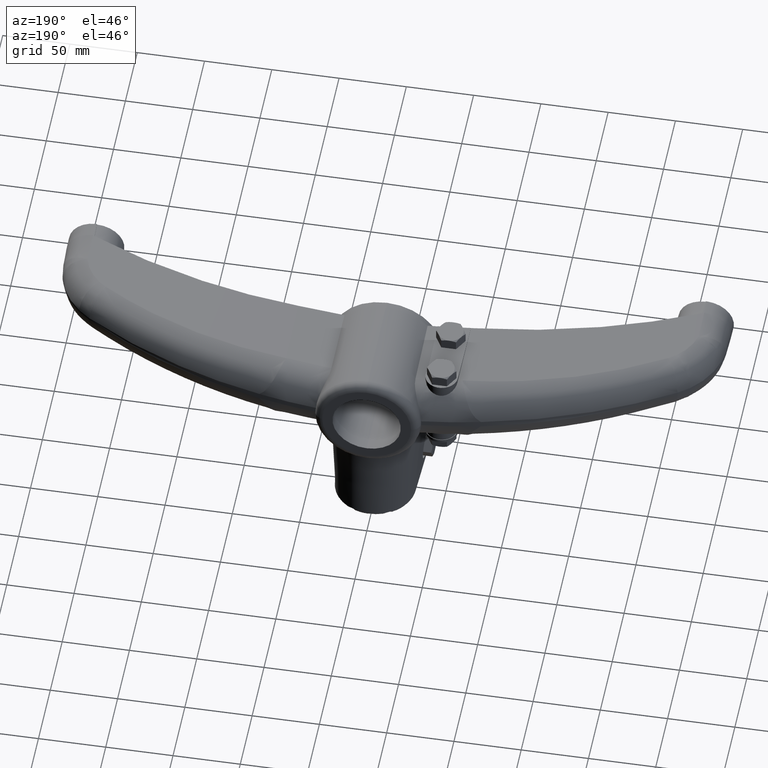
[diagram: clean part render]
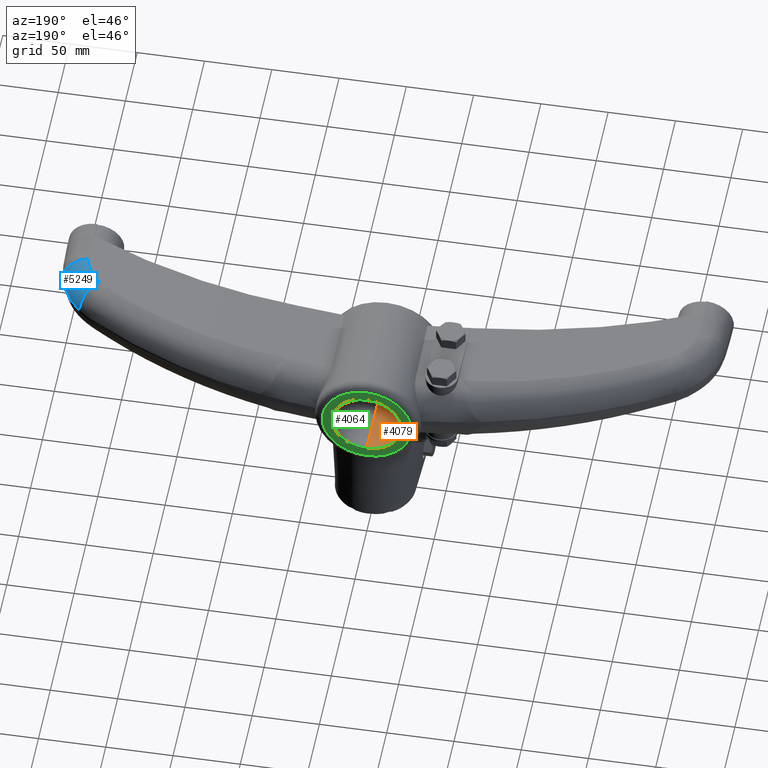
[diagram: same view with three faces highlighted in distinct colors, each labeled with its STEP entity id]
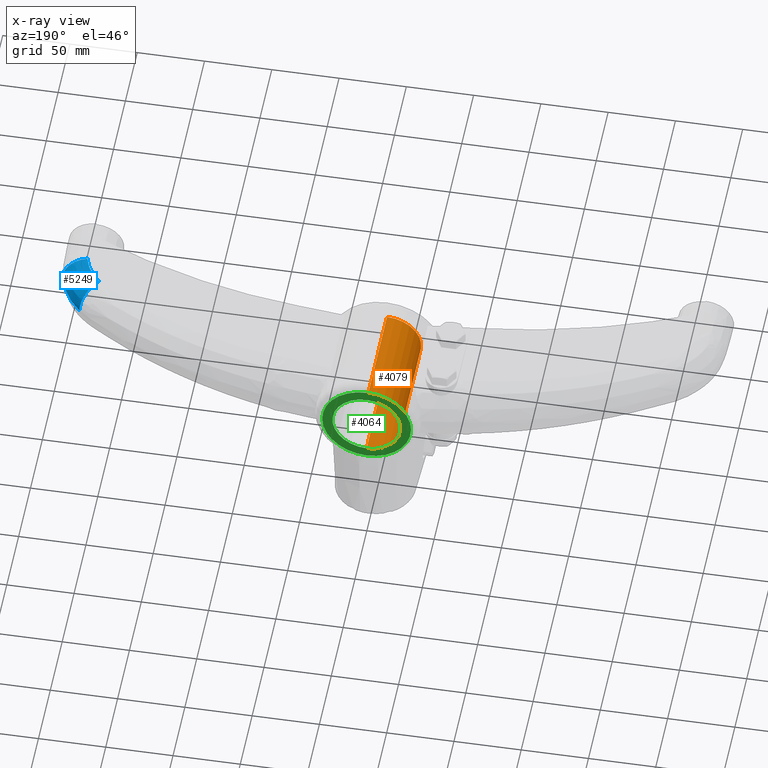
[diagram: x-ray of the same camera — body ghosted, the three highlighted faces saturated]
A machine part, auxiliary view with three faces highlighted in distinct colors.
The next image is the same camera in x-ray (body ghosted, the three faces saturated) — at least one of them is partly hidden behind the body in this view.
Their STEP definitions:

[orange] entity #4079 — the highlighted cylindrical surface (edge-blend (fillet) strip) has radius 25.4 mm, axis along (0, 1, 0).
#528=CARTESIAN_POINT('',(0.E0,2.008E2,0.E0));
#529=DIRECTION('',(0.E0,-1.E0,0.E0));
#530=DIRECTION('',(0.E0,0.E0,1.E0));
#531=AXIS2_PLACEMENT_3D('',#528,#529,#530);
#538=DIRECTION('',(0.E0,1.E0,0.E0));
#539=VECTOR('',#538,8.585E1);
#540=CARTESIAN_POINT('',(1.748526589449E-12,1.1495E2,2.54E1));
#541=LINE('',#540,#539);
#542=DIRECTION('',(0.E0,-1.E0,0.E0));
#543=VECTOR('',#542,8.585E1);
#544=CARTESIAN_POINT('',(-1.730970262687E-12,2.008E2,-2.54E1));
#545=LINE('',#544,#543);
#556=CARTESIAN_POINT('',(0.E0,1.1495E2,0.E0));
#557=DIRECTION('',(0.E0,-1.E0,0.E0));
#558=DIRECTION('',(0.E0,0.E0,1.E0));
#559=AXIS2_PLACEMENT_3D('',#556,#557,#558);
#2816=CARTESIAN_POINT('',(0.E0,2.008E2,2.54E1));
#2817=CARTESIAN_POINT('',(5.089064504793E-14,2.008E2,-2.54E1));
#2818=VERTEX_POINT('',#2816);
#2819=VERTEX_POINT('',#2817);
#2824=CARTESIAN_POINT('',(0.E0,1.1495E2,2.54E1));
#2825=CARTESIAN_POINT('',(6.101587903251E-14,1.1495E2,-2.54E1));
#2826=VERTEX_POINT('',#2824);
#2827=VERTEX_POINT('',#2825);
#4065=CARTESIAN_POINT('',(0.E0,1.13233E2,0.E0));
#4066=DIRECTION('',(0.E0,1.E0,0.E0));
#4067=DIRECTION('',(1.E0,0.E0,0.E0));
#4068=AXIS2_PLACEMENT_3D('',#4065,#4066,#4067);
#4069=CYLINDRICAL_SURFACE('',#4068,2.54E1);
#4071=ORIENTED_EDGE('',*,*,#4070,.T.);
#4072=ORIENTED_EDGE('',*,*,#4058,.T.);
#4074=ORIENTED_EDGE('',*,*,#4073,.T.);
#4076=ORIENTED_EDGE('',*,*,#4075,.F.);
#4077=EDGE_LOOP('',(#4071,#4072,#4074,#4076));
#4078=FACE_OUTER_BOUND('',#4077,.F.);
#532=CIRCLE('',#531,2.54E1);
#560=CIRCLE('',#559,2.54E1);
#4058=EDGE_CURVE('',#2818,#2819,#532,.T.);
#4070=EDGE_CURVE('',#2826,#2818,#541,.T.);
#4073=EDGE_CURVE('',#2819,#2827,#545,.T.);
#4075=EDGE_CURVE('',#2826,#2827,#560,.T.);
#4079=ADVANCED_FACE('',(#4078),#4069,.F.);

[blue] entity #5249 — the highlighted face is a freeform B-spline surface patch.
#871=CARTESIAN_POINT('',(2.147887990553E2,1.106143335990E2,1.976642468663E1));
#872=CARTESIAN_POINT('',(2.168444675634E2,1.087190028896E2,1.974243517692E1));
#873=CARTESIAN_POINT('',(2.204997489108E2,1.046238542276E2,1.972511924675E1));
#874=CARTESIAN_POINT('',(2.247145603816E2,9.739668299827E1,1.979271902081E1));
#875=CARTESIAN_POINT('',(2.264789147487E2,9.219757636884E1,1.989699918010E1));
#876=CARTESIAN_POINT('',(2.271163880004E2,8.947427717805E1,1.996420669294E1));
#906=CARTESIAN_POINT('',(2.147887990553E2,1.106143335990E2,1.976642468663E1));
#907=CARTESIAN_POINT('',(2.162732689892E2,1.122322042977E2,1.964470778454E1));
#908=CARTESIAN_POINT('',(2.194289586342E2,1.156814367755E2,1.860983506199E1));
#909=CARTESIAN_POINT('',(2.237248985495E2,1.204161251185E2,1.415435554932E1));
#910=CARTESIAN_POINT('',(2.264497888097E2,1.234681571072E2,7.524948947217E0));
#911=CARTESIAN_POINT('',(2.269424967055E2,1.240652443800E2,2.803564686934E0));
#912=CARTESIAN_POINT('',(2.269284403746E2,1.240781541844E2,6.065666516482E-1));
#932=CARTESIAN_POINT('',(2.449688144053E2,9.314148624189E1,8.043486134355E-1));
#934=CARTESIAN_POINT('',(2.449688144053E2,9.314148624189E1,8.043486134355E-1));
#935=CARTESIAN_POINT('',(2.422305893967E2,1.049440503547E2,6.045767622769E-1));
#936=CARTESIAN_POINT('',(2.358534615794E2,1.158811137690E2,5.346337850391E-1));
#937=CARTESIAN_POINT('',(2.269284403746E2,1.240781541844E2,6.065666516482E-1));
#1069=CARTESIAN_POINT('',(2.271163880004E2,8.947427717805E1,1.996420669294E1));
#1070=CARTESIAN_POINT('',(2.292608576266E2,8.996903898491E1,1.985277474181E1));
#1071=CARTESIAN_POINT('',(2.338369805331E2,9.100553774989E1,1.883668354293E1));
#1072=CARTESIAN_POINT('',(2.401249935759E2,9.235418767987E1,1.438835911357E1));
#1073=CARTESIAN_POINT('',(2.441733413905E2,9.312881874024E1,7.743332262751E0));
#1074=CARTESIAN_POINT('',(2.449568011814E2,9.319326691975E1,3.007330858494E0));
#1075=CARTESIAN_POINT('',(2.449688144053E2,9.314148624189E1,8.043486134355E-1));
#2974=CARTESIAN_POINT('',(2.271163880004E2,8.947427717805E1,1.996420669294E1));
#2975=VERTEX_POINT('',#2974);
#2976=VERTEX_POINT('',#871);
#3001=VERTEX_POINT('',#932);
#3002=VERTEX_POINT('',#937);
#5154=CARTESIAN_POINT('',(2.266222763367E2,8.903470877112E1,1.999248899543E1));
#5155=CARTESIAN_POINT('',(2.265980074450E2,8.913756081586E1,1.998992238087E1));
#5156=CARTESIAN_POINT('',(2.264350157676E2,8.981678513703E1,1.997309372719E1));
#5157=CARTESIAN_POINT('',(2.261022126779E2,9.106494349618E1,1.994364068039E1));
#5158=CARTESIAN_POINT('',(2.255714338906E2,9.276217601507E1,1.990706028718E1));
#5159=CARTESIAN_POINT('',(2.249692490505E2,9.443465897387E1,1.987452727109E1));
#5160=CARTESIAN_POINT('',(2.242966708408E2,9.607982396435E1,1.984609281001E1));
#5161=CARTESIAN_POINT('',(2.235544274469E2,9.769583563740E1,1.982179380253E1));
#5162=CARTESIAN_POINT('',(2.227468791795E2,9.927347282239E1,1.980176705556E1));
#5163=CARTESIAN_POINT('',(2.218896934740E2,1.007866841939E2,1.978624235691E1));
#5164=CARTESIAN_POINT('',(2.210099007057E2,1.022010438352E2,1.977523934700E1));
#5165=CARTESIAN_POINT('',(2.201347819131E2,1.034935244683E2,1.976836036911E1));
#5166=CARTESIAN_POINT('',(2.192829424781E2,1.046591755180E2,1.976495155982E1));
#5167=CARTESIAN_POINT('',(2.184618866753E2,1.057079588205E2,1.976432391738E1));
#5168=CARTESIAN_POINT('',(2.176753906576E2,1.066518110191E2,1.976588436245E1));
#5169=CARTESIAN_POINT('',(2.169273584787E2,1.074997083070E2,1.976913921858E1));
#5170=CARTESIAN_POINT('',(2.162237152053E2,1.082568281210E2,1.977363958620E1));
#5171=CARTESIAN_POINT('',(2.155650504480E2,1.089329515502E2,1.977901116168E1));
#5172=CARTESIAN_POINT('',(2.149422850692E2,1.095453165180E2,1.978504628256E1));
#5173=CARTESIAN_POINT('',(2.144567830897E2,1.100038328745E2,1.979042200250E1));
#5174=CARTESIAN_POINT('',(2.141773335658E2,1.102606443201E2,1.979376855949E1));
#5175=CARTESIAN_POINT('',(2.140992652534E2,1.103318444349E2,1.979472280320E1));
#5176=CARTESIAN_POINT('',(2.376800043010E2,9.150404253800E1,1.976365836721E1));
#5177=CARTESIAN_POINT('',(2.376493366178E2,9.163554849344E1,1.976109090456E1));
#5178=CARTESIAN_POINT('',(2.374433145981E2,9.250400225012E1,1.974425686646E1));
#5179=CARTESIAN_POINT('',(2.370219732768E2,9.409994143818E1,1.971479619184E1));
#5180=CARTESIAN_POINT('',(2.363484460728E2,9.627051481869E1,1.967820439787E1));
#5181=CARTESIAN_POINT('',(2.355830158457E2,9.840962308989E1,1.964566187829E1));
#5182=CARTESIAN_POINT('',(2.347269455264E2,1.005139872665E2,1.961721864571E1));
#5183=CARTESIAN_POINT('',(2.337811791405E2,1.025811447296E2,1.959291217803E1));
#5184=CARTESIAN_POINT('',(2.327512811295E2,1.045992382101E2,1.957287917394E1));
#5185=CARTESIAN_POINT('',(2.316572773846E2,1.065348626154E2,1.955734960196E1));
#5186=CARTESIAN_POINT('',(2.305337541850E2,1.083439239601E2,1.954634310993E1));
#5187=CARTESIAN_POINT('',(2.294156747861E2,1.099969341027E2,1.953946194533E1));
#5188=CARTESIAN_POINT('',(2.283269371806E2,1.114875536149E2,1.953605205094E1));
#5189=CARTESIAN_POINT('',(2.272772401421E2,1.128285347145E2,1.953542420767E1));
#5190=CARTESIAN_POINT('',(2.262714974636E2,1.140351618337E2,1.953698515018E1));
#5191=CARTESIAN_POINT('',(2.253147685818E2,1.151189376638E2,1.954024103991E1));
#5192=CARTESIAN_POINT('',(2.244146838219E2,1.160865148374E2,1.954474284025E1));
#5193=CARTESIAN_POINT('',(2.235720433431E2,1.169504269658E2,1.955011610844E1));
#5194=CARTESIAN_POINT('',(2.227752563205E2,1.177327380135E2,1.955615315646E1));
#5195=CARTESIAN_POINT('',(2.221540522032E2,1.183183926068E2,1.956153053728E1));
#5196=CARTESIAN_POINT('',(2.217964737909E2,1.186463761373E2,1.956487817499E1));
#5197=CARTESIAN_POINT('',(2.216965772867E2,1.187373057566E2,1.956583273185E1));
#5198=CARTESIAN_POINT('',(2.453433711876E2,9.301302766925E1,1.155274541689E1));
#5199=CARTESIAN_POINT('',(2.453085629452E2,9.316541794621E1,1.155015157717E1));
#5200=CARTESIAN_POINT('',(2.450746074801E2,9.417181118935E1,1.153314416578E1));
#5201=CARTESIAN_POINT('',(2.445947170164E2,9.602150548424E1,1.150337825669E1));
#5202=CARTESIAN_POINT('',(2.438245086944E2,9.853790792664E1,1.146639828929E1));
#5203=CARTESIAN_POINT('',(2.429465565994E2,1.010182891484E2,1.143350542931E1));
#5204=CARTESIAN_POINT('',(2.419622948376E2,1.034587398538E2,1.140475118486E1));
#5205=CARTESIAN_POINT('',(2.408728264E2,1.058562258500E2,1.138017570594E1));
#5206=CARTESIAN_POINT('',(2.396845860726E2,1.081968492020E2,1.135991862867E1));
#5207=CARTESIAN_POINT('',(2.384207650691E2,1.104417127357E2,1.134421392113E1));
#5208=CARTESIAN_POINT('',(2.371214979944E2,1.125395568533E2,1.133308253772E1));
#5209=CARTESIAN_POINT('',(2.358274681889E2,1.144561168514E2,1.132612297756E1));
#5210=CARTESIAN_POINT('',(2.345665895729E2,1.161840282256E2,1.132267414834E1));
#5211=CARTESIAN_POINT('',(2.333503121264E2,1.177380981937E2,1.132203912982E1));
#5212=CARTESIAN_POINT('',(2.321845023933E2,1.191360852655E2,1.132361790553E1));
#5213=CARTESIAN_POINT('',(2.310751593740E2,1.203913723599E2,1.132691094656E1));
#5214=CARTESIAN_POINT('',(2.300312378135E2,1.215117329129E2,1.133146402514E1));
#5215=CARTESIAN_POINT('',(2.290537538513E2,1.225117518401E2,1.133689834435E1));
#5216=CARTESIAN_POINT('',(2.281293195817E2,1.234170378176E2,1.134300383365E1));
#5217=CARTESIAN_POINT('',(2.274085143372E2,1.240945385356E2,1.134844194412E1));
#5218=CARTESIAN_POINT('',(2.269935712706E2,1.244738759782E2,1.135182736028E1));
#5219=CARTESIAN_POINT('',(2.268776463465E2,1.245790364365E2,1.135279267965E1));
#5220=CARTESIAN_POINT('',(2.450678472785E2,9.266680582470E1,2.289856206769E-1));
#5221=CARTESIAN_POINT('',(2.450336121440E2,9.281992601393E1,2.263555171063E-1));
#5222=CARTESIAN_POINT('',(2.448033852216E2,9.383116792227E1,2.091095573666E-1));
#5223=CARTESIAN_POINT('',(2.443296555164E2,9.569010975222E1,1.789218172888E-1));
#5224=CARTESIAN_POINT('',(2.435661672101E2,9.821974591161E1,1.414070984106E-1));
#5225=CARTESIAN_POINT('',(2.426931444829E2,1.007136660419E2,1.080308199455E-1));
#5226=CARTESIAN_POINT('',(2.417120120330E2,1.031677845906E2,7.884775953010E-2));
#5227=CARTESIAN_POINT('',(2.406238806726E2,1.055788904410E2,5.390124738404E-2));
#5228=CARTESIAN_POINT('',(2.394352056142E2,1.079328505809E2,3.333516075283E-2));
#5229=CARTESIAN_POINT('',(2.381692731610E2,1.101903943544E2,1.738891428888E-2));
#5230=CARTESIAN_POINT('',(2.368664683974E2,1.122998483585E2,6.085293311914E-3));
#5231=CARTESIAN_POINT('',(2.355678404928E2,1.142266882269E2,
-9.823811150214E-4));
#5232=CARTESIAN_POINT('',(2.343016610856E2,1.159634960460E2,
-4.484905732243E-3));
#5233=CARTESIAN_POINT('',(2.330796495700E2,1.175251799964E2,
-5.129818879739E-3));
#5234=CARTESIAN_POINT('',(2.319078753508E2,1.189296317764E2,
-3.526449640255E-3));
#5235=CARTESIAN_POINT('',(2.307925039929E2,1.201903532500E2,
-1.821710723132E-4));
#5236=CARTESIAN_POINT('',(2.297426484152E2,1.213152196046E2,4.441622232630E-3));
#5237=CARTESIAN_POINT('',(2.287594180882E2,1.223189493786E2,9.960146309393E-3));
#5238=CARTESIAN_POINT('',(2.278294083367E2,1.232273125446E2,1.616000396613E-2));
#5239=CARTESIAN_POINT('',(2.271041684349E2,1.239069006876E2,2.168189895166E-2));
#5240=CARTESIAN_POINT('',(2.266866433346E2,1.242873199734E2,2.511938794030E-2));
#5241=CARTESIAN_POINT('',(2.265699949358E2,1.243927734334E2,2.609953678393E-2));
#5242=(BOUNDED_SURFACE()B_SPLINE_SURFACE(3,3,((#5154,#5155,#5156,#5157,#5158,
#5159,#5160,#5161,#5162,#5163,#5164,#5165,#5166,#5167,#5168,#5169,#5170,#5171,
#5172,#5173,#5174,#5175),(#5176,#5177,#5178,#5179,#5180,#5181,#5182,#5183,#5184,
#5185,#5186,#5187,#5188,#5189,#5190,#5191,#5192,#5193,#5194,#5195,#5196,#5197),(
#5198,#5199,#5200,#5201,#5202,#5203,#5204,#5205,#5206,#5207,#5208,#5209,#5210,
#5211,#5212,#5213,#5214,#5215,#5216,#5217,#5218,#5219),(#5220,#5221,#5222,#5223,
#5224,#5225,#5226,#5227,#5228,#5229,#5230,#5231,#5232,#5233,#5234,#5235,#5236,
#5237,#5238,#5239,#5240,#5241)),.UNSPECIFIED.,.F.,.F.,.F.)B_SPLINE_SURFACE_WITH_KNOTS((4,4),(4,1,1,1,1,1,1,1,1,1,1,1,1,1,1,1,1,1,1,4),(0.E0,1.E0),(
-1.294605008780E-2,0.E0,7.262482864328E-2,1.452745169375E-1,2.179348894728E-1,
2.905450465853E-1,3.632425270235E-1,4.360849179349E-1,5.080115287399E-1,
5.766816456358E-1,6.405438756696E-1,6.996337451724E-1,7.539385672368E-1,
8.040843023372E-1,8.504866677245E-1,8.927709300473E-1,9.309925971963E-1,
9.663781087823E-1,1.E0,1.012971693591E0),.UNSPECIFIED.)GEOMETRIC_REPRESENTATION_ITEM()RATIONAL_B_SPLINE_SURFACE(((1.174060306377E0,1.174060306377E0,
1.174060306377E0,1.174060306377E0,1.174060306377E0,1.174060306377E0,
1.174060306377E0,1.174060306377E0,1.174060306377E0,1.174060306377E0,
1.174060306377E0,1.174060306377E0,1.174060306377E0,1.174060306377E0,
1.174060306377E0,1.174060306377E0,1.174060306377E0,1.174060306377E0,
1.174060306377E0,1.174060306377E0,1.174060306377E0,1.174060306377E0),(
9.419798978742E-1,9.419798978742E-1,9.419798978742E-1,9.419798978742E-1,
9.419798978742E-1,9.419798978742E-1,9.419798978742E-1,9.419798978742E-1,
9.419798978742E-1,9.419798978742E-1,9.419798978742E-1,9.419798978742E-1,
9.419798978742E-1,9.419798978742E-1,9.419798978742E-1,9.419798978742E-1,
9.419798978742E-1,9.419798978742E-1,9.419798978742E-1,9.419798978742E-1,
9.419798978742E-1,9.419798978742E-1),(9.419798978742E-1,9.419798978742E-1,
9.419798978742E-1,9.419798978742E-1,9.419798978742E-1,9.419798978742E-1,
9.419798978742E-1,9.419798978742E-1,9.419798978742E-1,9.419798978742E-1,
9.419798978742E-1,9.419798978742E-1,9.419798978742E-1,9.419798978742E-1,
9.419798978742E-1,9.419798978742E-1,9.419798978742E-1,9.419798978742E-1,
9.419798978742E-1,9.419798978742E-1,9.419798978742E-1,9.419798978742E-1),(
1.174060306377E0,1.174060306377E0,1.174060306377E0,1.174060306377E0,
1.174060306377E0,1.174060306377E0,1.174060306377E0,1.174060306377E0,
1.174060306377E0,1.174060306377E0,1.174060306377E0,1.174060306377E0,
1.174060306377E0,1.174060306377E0,1.174060306377E0,1.174060306377E0,
1.174060306377E0,1.174060306377E0,1.174060306377E0,1.174060306377E0,
1.174060306377E0,1.174060306377E0)))REPRESENTATION_ITEM('')SURFACE());
#5243=ORIENTED_EDGE('',*,*,#4445,.F.);
#5244=ORIENTED_EDGE('',*,*,#4612,.T.);
#5245=ORIENTED_EDGE('',*,*,#4630,.F.);
#5246=ORIENTED_EDGE('',*,*,#5148,.F.);
#5247=EDGE_LOOP('',(#5243,#5244,#5245,#5246));
#5248=FACE_OUTER_BOUND('',#5247,.F.);
#877=B_SPLINE_CURVE_WITH_KNOTS('',3,(#871,#872,#873,#874,#875,#876),
.UNSPECIFIED.,.F.,.F.,(4,1,1,4),(0.E0,3.333333333333E-1,6.666666666667E-1,1.E0),
.UNSPECIFIED.);
#913=B_SPLINE_CURVE_WITH_KNOTS('',3,(#906,#907,#908,#909,#910,#911,#912),
.UNSPECIFIED.,.F.,.F.,(4,1,1,1,4),(0.E0,2.5E-1,5.E-1,7.5E-1,1.E0),
.UNSPECIFIED.);
#938=B_SPLINE_CURVE_WITH_KNOTS('',3,(#934,#935,#936,#937),.UNSPECIFIED.,.F.,.F.,
(4,4),(0.E0,1.E0),.UNSPECIFIED.);
#1076=B_SPLINE_CURVE_WITH_KNOTS('',3,(#1069,#1070,#1071,#1072,#1073,#1074,
#1075),.UNSPECIFIED.,.F.,.F.,(4,1,1,1,4),(0.E0,2.5E-1,5.E-1,7.5E-1,1.E0),
.UNSPECIFIED.);
#4445=EDGE_CURVE('',#2976,#2975,#877,.T.);
#4612=EDGE_CURVE('',#2976,#3002,#913,.T.);
#4630=EDGE_CURVE('',#3001,#3002,#938,.T.);
#5148=EDGE_CURVE('',#2975,#3001,#1076,.T.);
#5249=ADVANCED_FACE('',(#5248),#5242,.T.);

[green] entity #4064 — the highlighted planar face has unit normal (0, 1, 0).
#508=CARTESIAN_POINT('',(3.872440919514E-2,2.007997785884E2,3.152722885285E-2));
#509=DIRECTION('',(7.052196441610E-6,9.999999999628E-1,4.962774298354E-6));
#510=DIRECTION('',(-1.171119268241E-3,4.971029858282E-6,-9.999993142272E-1));
#511=AXIS2_PLACEMENT_3D('',#508,#509,#510);
#513=CARTESIAN_POINT('',(-3.930502504215E-2,2.007997671572E2,
3.260159617195E-2));
#514=DIRECTION('',(-7.877132659169E-6,9.999999999566E-1,4.984680445232E-6));
#515=DIRECTION('',(9.999989808617E-1,7.884241060520E-6,-1.427660080842E-3));
#516=AXIS2_PLACEMENT_3D('',#513,#514,#515);
#518=CARTESIAN_POINT('',(-3.736288057701E-2,2.007997990240E2,
-2.912732325767E-2));
#519=DIRECTION('',(-6.533310915576E-6,9.999999999687E-1,-4.452514479273E-6));
#520=DIRECTION('',(1.130025003041E-3,4.459894441208E-6,9.999993615116E-1));
#521=AXIS2_PLACEMENT_3D('',#518,#519,#520);
#523=CARTESIAN_POINT('',(4.063434465378E-2,2.007997296278E2,
-3.501559150349E-2));
#524=DIRECTION('',(9.039195601356E-6,9.999999999420E-1,-5.857814263859E-6));
#525=DIRECTION('',(-9.999994643602E-1,9.045253520104E-6,1.034986752187E-3));
#526=AXIS2_PLACEMENT_3D('',#523,#524,#525);
#528=CARTESIAN_POINT('',(0.E0,2.008E2,0.E0));
#529=DIRECTION('',(0.E0,-1.E0,0.E0));
#530=DIRECTION('',(0.E0,0.E0,1.E0));
#531=AXIS2_PLACEMENT_3D('',#528,#529,#530);
#533=CARTESIAN_POINT('',(0.E0,2.008E2,0.E0));
#534=DIRECTION('',(0.E0,-1.E0,0.E0));
#535=DIRECTION('',(0.E0,0.E0,-1.E0));
#536=AXIS2_PLACEMENT_3D('',#533,#534,#535);
#2808=CARTESIAN_POINT('',(-4.978849684999E-6,2.007999429824E2,
-3.303885470025E1));
#2809=CARTESIAN_POINT('',(-3.303166441778E1,2.008000119676E2,
-7.792318702167E-4));
#2810=VERTEX_POINT('',#2808);
#2811=VERTEX_POINT('',#2809);
#2812=CARTESIAN_POINT('',(3.303218548892E1,2.008000279011E2,
-1.461329876727E-2));
#2813=VERTEX_POINT('',#2812);
#2814=CARTESIAN_POINT('',(4.629693694129E-6,2.007999465032E2,3.303871304437E1));
#2815=VERTEX_POINT('',#2814);
#2816=CARTESIAN_POINT('',(0.E0,2.008E2,2.54E1));
#2817=CARTESIAN_POINT('',(5.089064504793E-14,2.008E2,-2.54E1));
#2818=VERTEX_POINT('',#2816);
#2819=VERTEX_POINT('',#2817);
#4047=CARTESIAN_POINT('',(-7.721119099990E-4,2.008E2,6.343209999926E-6));
#4048=DIRECTION('',(0.E0,1.E0,0.E0));
#4049=DIRECTION('',(-1.E0,0.E0,0.E0));
#4050=AXIS2_PLACEMENT_3D('',#4047,#4048,#4049);
#4051=PLANE('',#4050);
#4052=ORIENTED_EDGE('',*,*,#4027,.F.);
#4053=ORIENTED_EDGE('',*,*,#4042,.F.);
#4054=ORIENTED_EDGE('',*,*,#3998,.F.);
#4055=ORIENTED_EDGE('',*,*,#4015,.F.);
#4056=EDGE_LOOP('',(#4052,#4053,#4054,#4055));
#4057=FACE_OUTER_BOUND('',#4056,.F.);
#4059=ORIENTED_EDGE('',*,*,#4058,.F.);
#4061=ORIENTED_EDGE('',*,*,#4060,.F.);
#4062=EDGE_LOOP('',(#4059,#4061));
#4063=FACE_BOUND('',#4062,.F.);
#512=CIRCLE('',#511,3.307040460788E1);
#517=CIRCLE('',#516,3.307152421842E1);
#522=CIRCLE('',#521,3.306786148107E1);
#527=CIRCLE('',#526,3.307406042708E1);
#532=CIRCLE('',#531,2.54E1);
#537=CIRCLE('',#536,2.54E1);
#3998=EDGE_CURVE('',#2815,#2813,#522,.T.);
#4015=EDGE_CURVE('',#2811,#2815,#527,.T.);
#4027=EDGE_CURVE('',#2810,#2811,#512,.T.);
#4042=EDGE_CURVE('',#2813,#2810,#517,.T.);
#4058=EDGE_CURVE('',#2818,#2819,#532,.T.);
#4060=EDGE_CURVE('',#2819,#2818,#537,.T.);
#4064=ADVANCED_FACE('',(#4057,#4063),#4051,.T.);